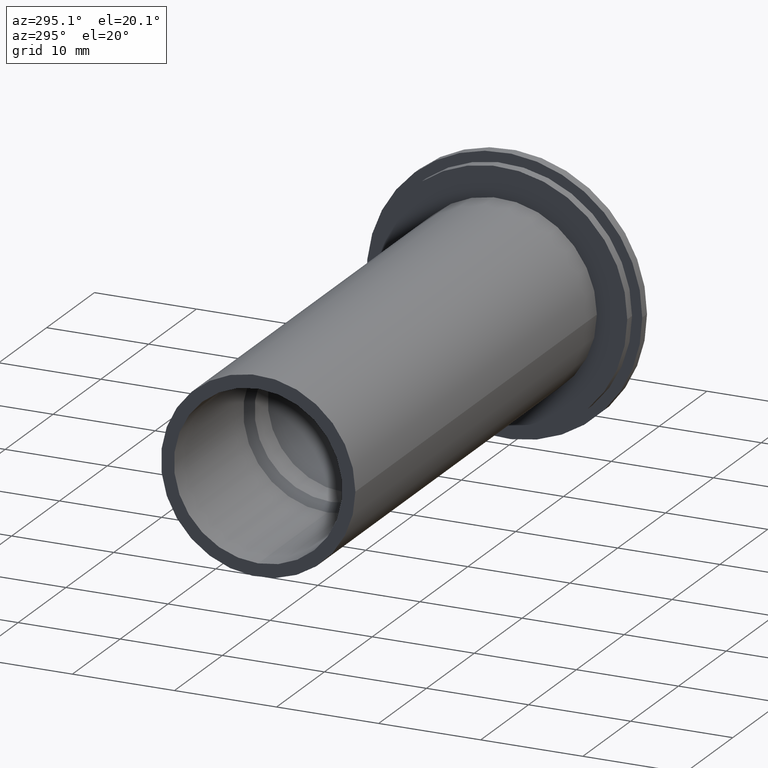
[diagram: clean part render]
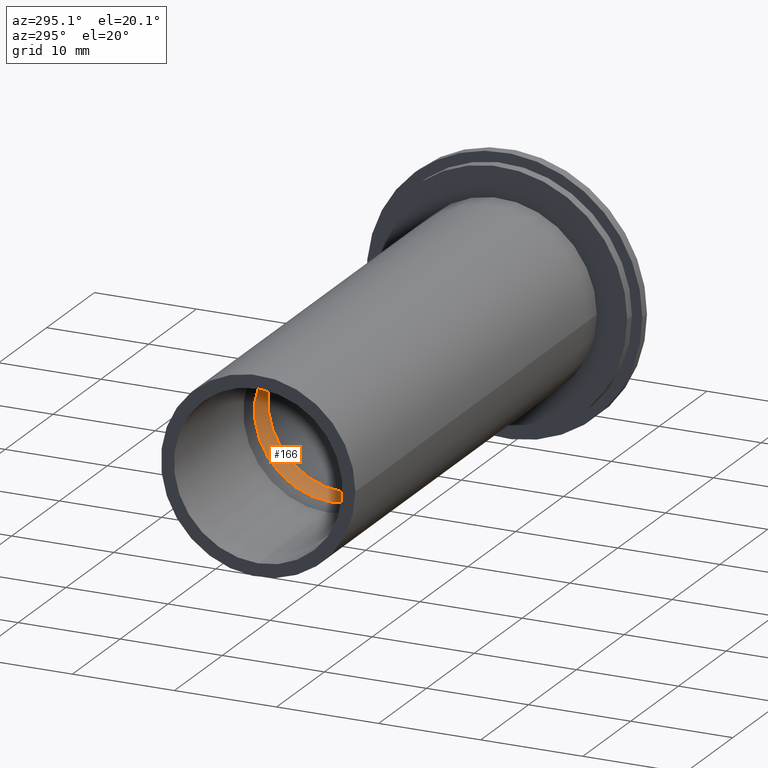
[diagram: same view with one face highlighted and labeled with its STEP entity id]
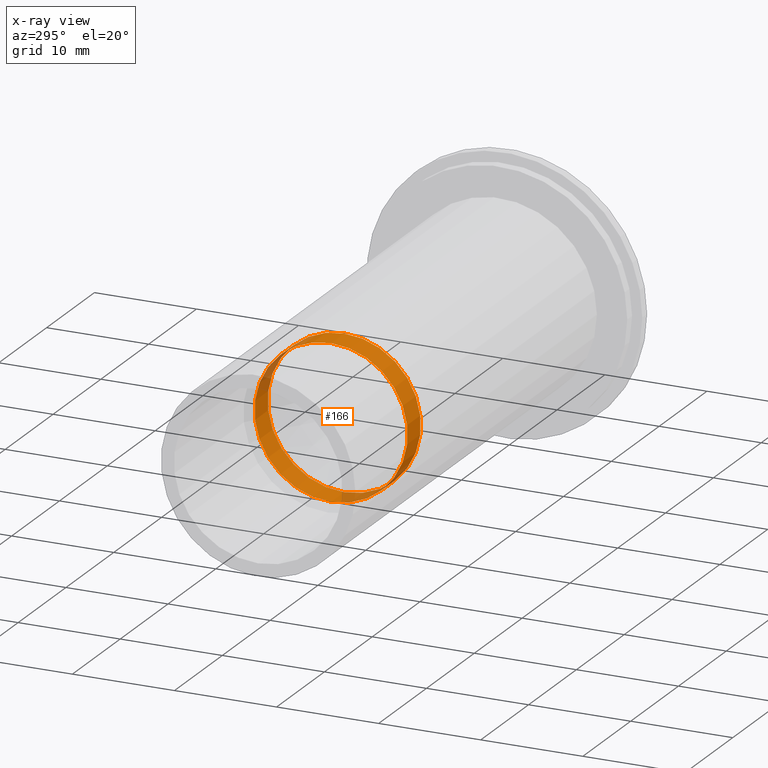
[diagram: x-ray of the same camera — body ghosted, the highlighted face saturated]
A machine part, auxiliary view. The second image highlights one B-rep face of the part: STEP entity #166.
The next image is the same camera in x-ray: the body ghosted, the highlighted face saturated — about 13% of this face is hidden behind the body in this view.
In plain terms, the highlighted cylindrical surface (bore or boss wall) has radius 7.5 mm, axis along (-1, 0, 0).
Its self-contained STEP definition (entity closure, byte-faithful):
#27=FACE_OUTER_BOUND('',#39,.T.);
#39=EDGE_LOOP('',(#126,#127,#128,#129));
#55=LINE('',#300,#63);
#63=VECTOR('',#244,7.5);
#72=CIRCLE('',#204,7.5);
#73=CIRCLE('',#206,7.5);
#85=VERTEX_POINT('',#294);
#86=VERTEX_POINT('',#298);
#99=EDGE_CURVE('',#85,#85,#72,.T.);
#101=EDGE_CURVE('',#86,#86,#73,.T.);
#102=EDGE_CURVE('',#86,#85,#55,.T.);
#126=ORIENTED_EDGE('',*,*,#101,.F.);
#127=ORIENTED_EDGE('',*,*,#102,.T.);
#128=ORIENTED_EDGE('',*,*,#99,.F.);
#129=ORIENTED_EDGE('',*,*,#102,.F.);
#159=CYLINDRICAL_SURFACE('',#205,7.5);
#166=ADVANCED_FACE('',(#27),#159,.F.);
#204=AXIS2_PLACEMENT_3D('',#295,#237,#238);
#205=AXIS2_PLACEMENT_3D('',#297,#240,#241);
#206=AXIS2_PLACEMENT_3D('',#299,#242,#243);
#237=DIRECTION('center_axis',(-1.,0.,0.));
#238=DIRECTION('ref_axis',(0.,0.,1.));
#240=DIRECTION('center_axis',(-1.,0.,0.));
#241=DIRECTION('ref_axis',(0.,0.,1.));
#242=DIRECTION('center_axis',(1.,0.,0.));
#243=DIRECTION('ref_axis',(0.,0.,1.));
#244=DIRECTION('',(1.,0.,0.));
#294=CARTESIAN_POINT('',(-34.5,-9.18485099360515E-16,-7.5));
#295=CARTESIAN_POINT('Origin',(-34.5,0.,0.));
#297=CARTESIAN_POINT('Origin',(-43.5,0.,0.));
#298=CARTESIAN_POINT('',(-37.25,9.18485099360515E-16,-7.5));
#299=CARTESIAN_POINT('Origin',(-37.25,0.,0.));
#300=CARTESIAN_POINT('',(-43.5,-9.18485099360515E-16,-7.5));